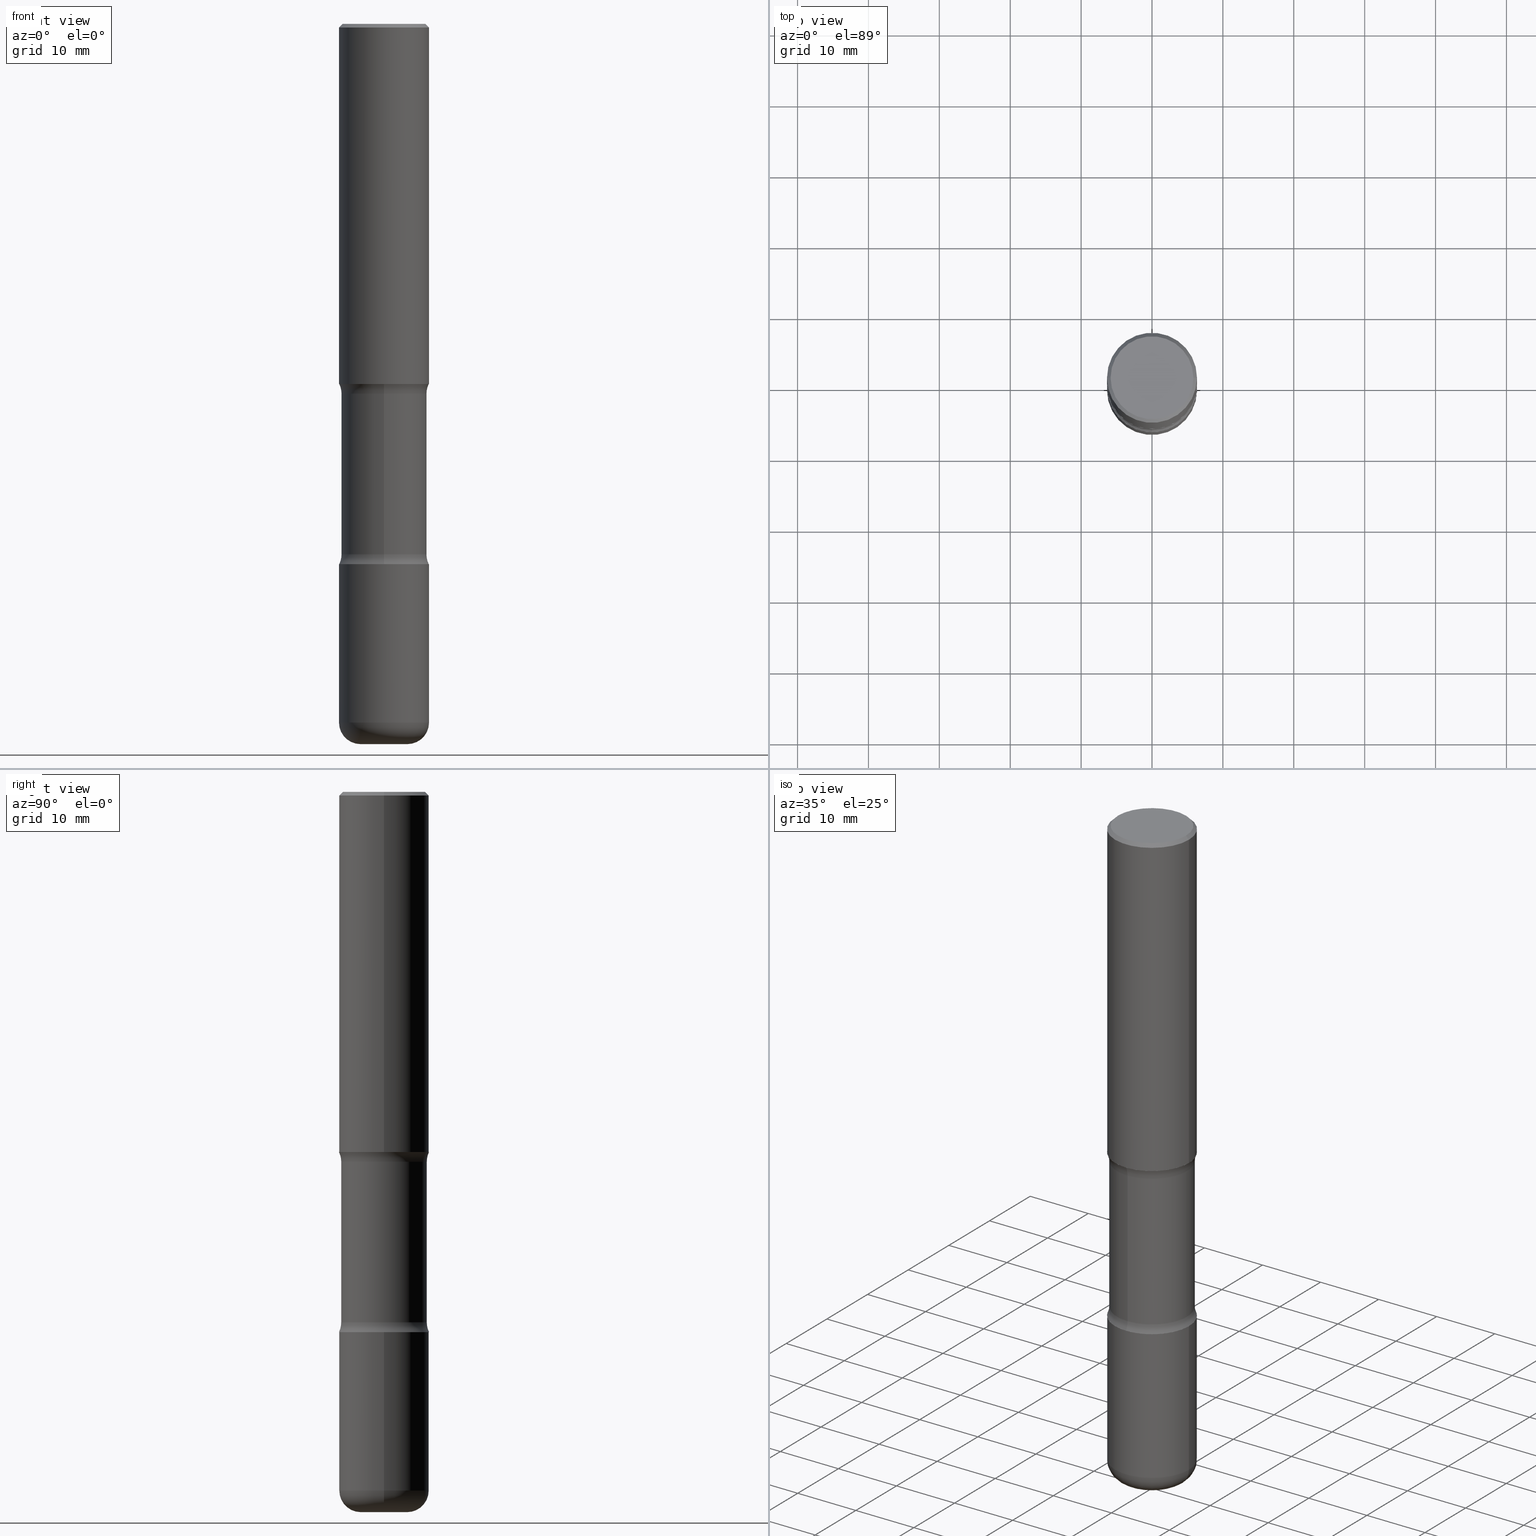
[diagram: canonical four-view strip — front | top / right | iso, engineering-drawing reading convention]
A machine part, canonical four-view strip (front | top / right | iso — engineering-drawing reading convention). The complete STEP part file that produces these views, byte-faithful:
ISO-10303-21;
HEADER;
FILE_DESCRIPTION (( 'STEP AP203' ),
    '1' );
FILE_NAME ('37891.STEP',
    '2024-03-02T01:08:46',
    ( '' ),
    ( '' ),
    'SwSTEP 2.0',
    'SolidWorks 2023',
    '' );
FILE_SCHEMA (( 'CONFIG_CONTROL_DESIGN' ));
ENDSEC;

DATA;
#1 = CARTESIAN_POINT ( 'NONE',  ( -0.2500000000000003331, -1.177059075531115523E-14, -3.880000000000000782 ) ) ;
#2 = CIRCLE ( 'NONE', #268, 0.2500000000000003886 ) ;
#3 = DIRECTION ( 'NONE',  ( 2.530378452311521502E-29, -3.369885892833230986E-15, -1.000000000000000000 ) ) ;
#4 = CARTESIAN_POINT ( 'NONE',  ( 1.745740669421641422E-15, 0.2499999999999897582, -3.000000000000000888 ) ) ;
#5 = DIRECTION ( 'NONE',  ( 2.445468806185136597E-29, -3.491481338843145583E-15, -1.000000000000000000 ) ) ;
#6 = APPROVAL ( #188, 'UNSPECIFIED' ) ;
#7 = AXIS2_PLACEMENT_3D ( 'NONE', #484, #232, #521 ) ;
#8 = CIRCLE ( 'NONE', #402, 0.2499999999999999167 ) ;
#9 = ORIENTED_EDGE ( 'NONE', *, *, #277, .F. ) ;
#10 = EDGE_CURVE ( 'NONE', #529, #126, #212, .T. ) ;
#11 = LINE ( 'NONE', #499, #259 ) ;
#12 = CARTESIAN_POINT ( 'NONE',  ( 4.890937612370273194E-29, -6.982962677686291165E-15, -2.000000000000000000 ) ) ;
#13 = EDGE_CURVE ( 'NONE', #77, #276, #272, .T. ) ;
#14 = ORIENTED_EDGE ( 'NONE', *, *, #403, .T. ) ;
#15 = DIRECTION ( 'NONE',  ( 2.530378452311521502E-29, -3.369885892833230986E-15, -1.000000000000000000 ) ) ;
#16 = ORIENTED_EDGE ( 'NONE', *, *, #391, .T. ) ;
#17 = PERSON_AND_ORGANIZATION ( #172, #49 ) ;
#18 = DIRECTION ( 'NONE',  ( 6.982962677686265922E-15, 1.000000000000000000, -3.369885892833230986E-15 ) ) ;
#19 = EDGE_LOOP ( 'NONE', ( #416, #152, #44, #72 ) ) ;
#20 = CARTESIAN_POINT ( 'NONE',  ( -1.715124499442811104E-15, -0.2500000000000107692, -2.999999999999999556 ) ) ;
#21 = ORIENTED_EDGE ( 'NONE', *, *, #403, .F. ) ;
#22 = CC_DESIGN_PERSON_AND_ORGANIZATION_ASSIGNMENT ( #32, #146, ( #347 ) ) ;
#23 = PERSON_AND_ORGANIZATION_ROLE ( 'design_owner' ) ;
#24 = CARTESIAN_POINT ( 'NONE',  ( 0.2500000000000003331, -1.529268826413297711E-14, -3.880000000000000782 ) ) ;
#25 = CONICAL_SURFACE ( 'NONE', #54, 0.2499999999999999167, 0.7853981633974472798 ) ;
#26 = AXIS2_PLACEMENT_3D ( 'NONE', #138, #108, #93 ) ;
#27 = APPROVAL_PERSON_ORGANIZATION ( #17, #132, #242 ) ;
#28 = VERTEX_POINT ( 'NONE', #130 ) ;
#29 = CARTESIAN_POINT ( 'NONE',  ( 0.000000000000000000, 0.000000000000000000, 0.000000000000000000 ) ) ;
#30 = CARTESIAN_POINT ( 'NONE',  ( -0.2500000000000003331, 1.776356839400252831E-15, -1.229733772563727987E-29 ) ) ;
#31 = DIRECTION ( 'NONE',  ( -6.982962677686265133E-15, -1.000000000000000000, 0.000000000000000000 ) ) ;
#32 = PERSON_AND_ORGANIZATION ( #172, #49 ) ;
#33 = CARTESIAN_POINT ( 'NONE',  ( 7.336406418555409790E-29, -1.047444401652943635E-14, -3.000000000000000444 ) ) ;
#34 = EDGE_CURVE ( 'NONE', #457, #66, #80, .T. ) ;
#35 = ORIENTED_EDGE ( 'NONE', *, *, #149, .T. ) ;
#36 = DIRECTION ( 'NONE',  ( 1.000000000000000000, -6.982962677686270655E-15, 0.000000000000000000 ) ) ;
#37 = AXIS2_PLACEMENT_3D ( 'NONE', #228, #351, #190 ) ;
#38 = CIRCLE ( 'NONE', #184, 0.2500000000000001665 ) ;
#39 = ORIENTED_EDGE ( 'NONE', *, *, #473, .T. ) ;
#40 = CARTESIAN_POINT ( 'NONE',  ( 9.488418967998331206E-29, -1.354694759471140727E-14, -3.880000000000000782 ) ) ;
#41 = ORIENTED_EDGE ( 'NONE', *, *, #355, .T. ) ;
#42 = EDGE_CURVE ( 'NONE', #493, #207, #291, .T. ) ;
#43 = CARTESIAN_POINT ( 'NONE',  ( 4.890937612370273194E-29, -6.982962677686291165E-15, -2.000000000000000000 ) ) ;
#44 = ORIENTED_EDGE ( 'NONE', *, *, #10, .T. ) ;
#45 = ADVANCED_FACE ( 'NONE', ( #299 ), #133, .T. ) ;
#46 = DIRECTION ( 'NONE',  ( 2.530378452311521502E-29, -3.369885892833230986E-15, -1.000000000000000000 ) ) ;
#47 = FACE_OUTER_BOUND ( 'NONE', #283, .T. ) ;
#48 = VECTOR ( 'NONE', #170, 39.37007874015748143 ) ;
#49 = ORGANIZATION ( 'UNSPECIFIED', 'UNSPECIFIED', '' ) ;
#50 = CARTESIAN_POINT ( 'NONE',  ( -1.672246386956739071E-15, -0.2375000000000103417, -2.945513763205740876 ) ) ;
#51 = DIRECTION ( 'NONE',  ( -2.445468806185136877E-29, 3.491481338843145188E-15, 1.000000000000000000 ) ) ;
#52 = ADVANCED_FACE ( 'NONE', ( #475 ), #25, .T. ) ;
#53 = EDGE_CURVE ( 'NONE', #69, #28, #508, .T. ) ;
#54 = AXIS2_PLACEMENT_3D ( 'NONE', #342, #516, #135 ) ;
#55 = CARTESIAN_POINT ( 'NONE',  ( 1.606081415867840476E-15, 0.2299999999999998990, -8.030407079339231961E-16 ) ) ;
#56 = CC_DESIGN_APPROVAL ( #132, ( #348 ) ) ;
#57 = EDGE_CURVE ( 'NONE', #145, #500, #501, .T. ) ;
#58 = CARTESIAN_POINT ( 'NONE',  ( -1.672246386956763723E-15, -0.2375000000000074274, -2.054486236794258236 ) ) ;
#59 = ORIENTED_EDGE ( 'NONE', *, *, #57, .F. ) ;
#60 = DIRECTION ( 'NONE',  ( -0.7071067811865467956, 2.468850131082249172E-15, -0.7071067811865482389 ) ) ;
#61 = ORIENTED_EDGE ( 'NONE', *, *, #473, .F. ) ;
#62 = DATE_AND_TIME ( #157, #124 ) ;
#63 = CLOSED_SHELL ( 'NONE', ( #311, #45, #545, #435, #352, #168 ) ) ;
#64 = AXIS2_PLACEMENT_3D ( 'NONE', #219, #392, #175 ) ;
#65 = DIRECTION ( 'NONE',  ( 1.000000000000000000, -6.982962677686266711E-15, 4.876176775795935793E-29 ) ) ;
#66 = VERTEX_POINT ( 'NONE', #306 ) ;
#67 = DIRECTION ( 'NONE',  ( 6.982962677686265133E-15, 1.000000000000000000, -2.300503573612010239E-15 ) ) ;
#68 = ADVANCED_FACE ( 'NONE', ( #47 ), #225, .T. ) ;
#69 = VERTEX_POINT ( 'NONE', #58 ) ;
#70 = APPLICATION_PROTOCOL_DEFINITION ( 'international standard', 'config_control_design', 1994, #320 ) ;
#71 = FACE_OUTER_BOUND ( 'NONE', #19, .T. ) ;
#72 = ORIENTED_EDGE ( 'NONE', *, *, #391, .F. ) ;
#73 = DIRECTION ( 'NONE',  ( 0.000000000000000000, 0.000000000000000000, 1.000000000000000000 ) ) ;
#74 = CARTESIAN_POINT ( 'NONE',  ( 0.000000000000000000, 0.000000000000000000, 0.000000000000000000 ) ) ;
#75 = AXIS2_PLACEMENT_3D ( 'NONE', #102, #408, #274 ) ;
#76 = CIRCLE ( 'NONE', #202, 0.2375000000000001277 ) ;
#77 = VERTEX_POINT ( 'NONE', #4 ) ;
#78 =( LENGTH_UNIT ( ) NAMED_UNIT ( * ) SI_UNIT ( $, .METRE. ) );
#79 = DIRECTION ( 'NONE',  ( 2.530378452311521502E-29, -3.369885892833230986E-15, -1.000000000000000000 ) ) ;
#80 = LINE ( 'NONE', #254, #48 ) ;
#81 = CARTESIAN_POINT ( 'NONE',  ( 0.2500000000000000555, -1.745740669421567269E-15, 1.219044193948984228E-29 ) ) ;
#82 = ORIENTED_EDGE ( 'NONE', *, *, #97, .F. ) ;
#83 = DIRECTION ( 'NONE',  ( -2.445468806185136597E-29, 3.491481338843145583E-15, 1.000000000000000000 ) ) ;
#84 = CIRCLE ( 'NONE', #401, 0.1250000000000000000 ) ;
#85 = AXIS2_PLACEMENT_3D ( 'NONE', #310, #445, #405 ) ;
#86 = ORIENTED_EDGE ( 'NONE', *, *, #194, .F. ) ;
#87 = DIRECTION ( 'NONE',  ( 1.000000000000000000, -6.982962677686265922E-15, 0.000000000000000000 ) ) ;
#88 = CARTESIAN_POINT ( 'NONE',  ( 7.336406418555409790E-29, -1.047444401652943635E-14, -3.000000000000000444 ) ) ;
#89 = DIRECTION ( 'NONE',  ( -2.445468806185136597E-29, 3.491481338843145583E-15, 1.000000000000000000 ) ) ;
#90 = CARTESIAN_POINT ( 'NONE',  ( 9.781875224740547508E-29, -1.396592535537258391E-14, -4.000000000000000888 ) ) ;
#91 = EDGE_CURVE ( 'NONE', #359, #207, #270, .T. ) ;
#92 = DIRECTION ( 'NONE',  ( -2.445468806185136877E-29, 3.491481338843145188E-15, 1.000000000000000000 ) ) ;
#93 = DIRECTION ( 'NONE',  ( -1.000000000000000000, 6.982962677686265922E-15, -4.876176775795935793E-29 ) ) ;
#94 = AXIS2_PLACEMENT_3D ( 'NONE', #471, #263, #31 ) ;
#95 = CIRCLE ( 'NONE', #134, 0.1250000000000000000 ) ;
#96 = ADVANCED_FACE ( 'NONE', ( #404 ), #144, .F. ) ;
#97 = EDGE_CURVE ( 'NONE', #247, #457, #409, .T. ) ;
#98 = AXIS2_PLACEMENT_3D ( 'NONE', #338, #510, #18 ) ;
#99 = ORIENTED_EDGE ( 'NONE', *, *, #34, .F. ) ;
#100 = TOROIDAL_SURFACE ( 'NONE', #422, 0.3625000000000000999, 0.1250000000000000000 ) ;
#101 = AXIS2_PLACEMENT_3D ( 'NONE', #544, #155, #67 ) ;
#102 = CARTESIAN_POINT ( 'NONE',  ( -2.486930524192108484E-15, -0.3625000000000104250, -2.945513763205740432 ) ) ;
#103 = ORIENTED_EDGE ( 'NONE', *, *, #277, .T. ) ;
#104 = DIRECTION ( 'NONE',  ( 2.438088387897960049E-29, -3.491481338843145188E-15, -1.000000000000000000 ) ) ;
#105 = DIRECTION ( 'NONE',  ( 1.000000000000000000, -6.982962677686267499E-15, 4.876176775795936353E-29 ) ) ;
#106 = EDGE_LOOP ( 'NONE', ( #549, #303, #167, #502 ) ) ;
#107 = APPROVAL_DATE_TIME ( #427, #295 ) ;
#108 = DIRECTION ( 'NONE',  ( 2.438088387897960049E-29, -3.491481338843145188E-15, -1.000000000000000000 ) ) ;
#109 = ORIENTED_EDGE ( 'NONE', *, *, #13, .T. ) ;
#110 = AXIS2_PLACEMENT_3D ( 'NONE', #169, #395, #258 ) ;
#111 = CYLINDRICAL_SURFACE ( 'NONE', #344, 0.2500000000000000555 ) ;
#112 = EDGE_CURVE ( 'NONE', #247, #326, #11, .T. ) ;
#113 = ORIENTED_EDGE ( 'NONE', *, *, #91, .F. ) ;
#114 = DIRECTION ( 'NONE',  ( -2.445468806185136597E-29, 3.491481338843145583E-15, 1.000000000000000000 ) ) ;
#115 = ORIENTED_EDGE ( 'NONE', *, *, #355, .F. ) ;
#116 = APPROVAL_ROLE ( '' ) ;
#117 = PERSON_AND_ORGANIZATION ( #172, #49 ) ;
#118 = CARTESIAN_POINT ( 'NONE',  ( -0.2500000000000000555, 1.776356839400250859E-15, -1.229733772563726866E-29 ) ) ;
#119 = ORIENTED_EDGE ( 'NONE', *, *, #194, .T. ) ;
#120 = EDGE_CURVE ( 'NONE', #500, #359, #325, .T. ) ;
#121 = APPROVAL_ROLE ( '' ) ;
#122 = CYLINDRICAL_SURFACE ( 'NONE', #396, 0.2500000000000003331 ) ;
#123 = AXIS2_PLACEMENT_3D ( 'NONE', #376, #253, #470 ) ;
#124 = LOCAL_TIME ( 20, 8, 46.00000000000000000, #383 ) ;
#125 = SECURITY_CLASSIFICATION ( '', '', #537 ) ;
#126 = VERTEX_POINT ( 'NONE', #189 ) ;
#127 = CARTESIAN_POINT ( 'NONE',  ( 1.658453635950560525E-15, 0.2374999999999897748, -2.945513763205741764 ) ) ;
#128 = ORIENTED_EDGE ( 'NONE', *, *, #309, .T. ) ;
#129 = DIRECTION ( 'NONE',  ( -2.445468806185136597E-29, 3.491481338843145583E-15, 1.000000000000000000 ) ) ;
#130 = CARTESIAN_POINT ( 'NONE',  ( 1.658453635950538436E-15, 0.2374999999999928557, -2.054486236794259568 ) ) ;
#131 = FACE_OUTER_BOUND ( 'NONE', #426, .T. ) ;
#132 = APPROVAL ( #547, 'UNSPECIFIED' ) ;
#133 = TOROIDAL_SURFACE ( 'NONE', #523, 0.1300000000000003375, 0.1199999999999999539 ) ;
#134 = AXIS2_PLACEMENT_3D ( 'NONE', #548, #161, #507 ) ;
#135 = DIRECTION ( 'NONE',  ( -1.000000000000000000, 6.982962677686267499E-15, 0.000000000000000000 ) ) ;
#136 = DIRECTION ( 'NONE',  ( 1.000000000000000000, -6.982962677686265922E-15, 4.876176775795935793E-29 ) ) ;
#137 = LINE ( 'NONE', #304, #346 ) ;
#138 = CARTESIAN_POINT ( 'NONE',  ( 7.336406418555409790E-29, -1.047444401652943635E-14, -3.000000000000000444 ) ) ;
#139 = CARTESIAN_POINT ( 'NONE',  ( 7.198535619023675570E-29, -1.029083161580289368E-14, -2.945513763205741320 ) ) ;
#140 = AXIS2_PLACEMENT_3D ( 'NONE', #198, #250, #243 ) ;
#141 = DIMENSIONAL_EXPONENTS ( 1.000000000000000000, 0.000000000000000000, 0.000000000000000000, 0.000000000000000000, 0.000000000000000000, 0.000000000000000000, 0.000000000000000000 ) ;
#142 = EDGE_LOOP ( 'NONE', ( #245, #431 ) ) ;
#143 = AXIS2_PLACEMENT_3D ( 'NONE', #33, #332, #420 ) ;
#144 = PLANE ( 'NONE',  #248 ) ;
#145 = VERTEX_POINT ( 'NONE', #362 ) ;
#146 = PERSON_AND_ORGANIZATION_ROLE ( 'creator' ) ;
#147 = PLANE ( 'NONE',  #26 ) ;
#148 = ORIENTED_EDGE ( 'NONE', *, *, #42, .T. ) ;
#149 = EDGE_CURVE ( 'NONE', #359, #209, #2, .T. ) ;
#150 = PERSON_AND_ORGANIZATION ( #172, #49 ) ;
#151 = CYLINDRICAL_SURFACE ( 'NONE', #337, 0.2375000000000000999 ) ;
#152 = ORIENTED_EDGE ( 'NONE', *, *, #177, .T. ) ;
#153 = CIRCLE ( 'NONE', #75, 0.1250000000000000278 ) ;
#154 = AXIS2_PLACEMENT_3D ( 'NONE', #55, #104, #278 ) ;
#155 = DIRECTION ( 'NONE',  ( 2.530378452311521502E-29, -3.369885892833230986E-15, -1.000000000000000000 ) ) ;
#156 = ORIENTED_EDGE ( 'NONE', *, *, #415, .T. ) ;
#157 = CALENDAR_DATE ( 2024, 1, 3 ) ;
#158 = CYLINDRICAL_SURFACE ( 'NONE', #410, 0.2500000000000003331 ) ;
#159 = DIRECTION ( 'NONE',  ( 2.530378452311521502E-29, -3.369885892833230986E-15, -1.000000000000000000 ) ) ;
#160 = LENGTH_MEASURE_WITH_UNIT ( LENGTH_MEASURE( 0.02539999999999999897 ), #78 );
#161 = DIRECTION ( 'NONE',  ( -1.000000000000000000, 6.982962677686265922E-15, -4.883557194083112340E-29 ) ) ;
#162 = CARTESIAN_POINT ( 'NONE',  ( 4.806027966243888288E-29, -7.104558123696206156E-15, -2.000000000000000000 ) ) ;
#163 = COORDINATED_UNIVERSAL_TIME_OFFSET ( 5, 0, .BEHIND. ) ;
#164 = CC_DESIGN_APPROVAL ( #6, ( #125 ) ) ;
#165 = CLOSED_SHELL ( 'NONE', ( #316, #201, #231, #503, #96, #256, #533, #68 ) ) ;
#166 = VECTOR ( 'NONE', #92, 39.37007874015748143 ) ;
#167 = ORIENTED_EDGE ( 'NONE', *, *, #91, .T. ) ;
#168 = ADVANCED_FACE ( 'NONE', ( #520 ), #147, .F. ) ;
#169 = CARTESIAN_POINT ( 'NONE',  ( 9.488418967998331206E-29, -1.354694759471140727E-14, -3.880000000000000782 ) ) ;
#170 = DIRECTION ( 'NONE',  ( 0.7071067811865467956, -7.319954787623254468E-15, -0.7071067811865482389 ) ) ;
#171 = DIRECTION ( 'NONE',  ( 6.982962677686265922E-15, 1.000000000000000000, -4.370956789862816416E-15 ) ) ;
#172 = PERSON ( 'UNSPECIFIED', 'UNSPECIFIED', 'UNSPECIFIED', ('UNSPECIFIED'), ('UNSPECIFIED'), ('UNSPECIFIED') ) ;
#173 = MANIFOLD_SOLID_BREP ( 'Body-Move/Copy2[4]', #165 ) ;
#174 = DIRECTION ( 'NONE',  ( 1.000000000000000000, -6.982962677686270655E-15, 4.883557194083114583E-29 ) ) ;
#175 = DIRECTION ( 'NONE',  ( 1.000000000000000000, -6.982962677686267499E-15, 4.876176775795935793E-29 ) ) ;
#176 = CIRCLE ( 'NONE', #440, 0.1300000000000003375 ) ;
#177 = EDGE_CURVE ( 'NONE', #69, #529, #84, .T. ) ;
#178 = AXIS2_PLACEMENT_3D ( 'NONE', #182, #522, #36 ) ;
#179 = CARTESIAN_POINT ( 'NONE',  ( 0.000000000000000000, 0.000000000000000000, 0.000000000000000000 ) ) ;
#180 = FACE_OUTER_BOUND ( 'NONE', #412, .T. ) ;
#181 = DIRECTION ( 'NONE',  ( 2.530378452311521502E-29, -3.369885892833230986E-15, -1.000000000000000000 ) ) ;
#182 = CARTESIAN_POINT ( 'NONE',  ( 7.336406418555409790E-29, -1.047444401652943635E-14, -3.000000000000000444 ) ) ;
#183 = MANIFOLD_SOLID_BREP ( 'Body-Move/Copy2[1]', #63 ) ;
#184 = AXIS2_PLACEMENT_3D ( 'NONE', #557, #129, #87 ) ;
#185 = PRODUCT_DEFINITION_SHAPE ( 'NONE', 'NONE',  #348 ) ;
#186 = DATE_AND_TIME ( #400, #411 ) ;
#187 = ORIENTED_EDGE ( 'NONE', *, *, #218, .T. ) ;
#188 = APPROVAL_STATUS ( 'not_yet_approved' ) ;
#189 = CARTESIAN_POINT ( 'NONE',  ( 1.745740669421617165E-15, 0.2499999999999933109, -2.000000000000000888 ) ) ;
#190 = DIRECTION ( 'NONE',  ( 6.982962677686265133E-15, 1.000000000000000000, -2.300503573612010239E-15 ) ) ;
#191 = CIRCLE ( 'NONE', #140, 0.1199999999999999262 ) ;
#192 = ORIENTED_EDGE ( 'NONE', *, *, #309, .F. ) ;
#193 = VECTOR ( 'NONE', #559, 39.37007874015748143 ) ;
#194 = EDGE_CURVE ( 'NONE', #257, #536, #153, .T. ) ;
#195 = ORIENTED_EDGE ( 'NONE', *, *, #448, .F. ) ;
#196 = CARTESIAN_POINT ( 'NONE',  ( 0.000000000000000000, 0.000000000000000000, 0.000000000000000000 ) ) ;
#197 = ORIENTED_EDGE ( 'NONE', *, *, #329, .F. ) ;
#198 = CARTESIAN_POINT ( 'NONE',  ( -0.1300000000000003375, -1.262324203822327621E-14, -3.880000000000000782 ) ) ;
#199 = VERTEX_POINT ( 'NONE', #406 ) ;
#200 = DATE_AND_TIME ( #208, #386 ) ;
#201 = ADVANCED_FACE ( 'NONE', ( #281 ), #466, .F. ) ;
#202 = AXIS2_PLACEMENT_3D ( 'NONE', #433, #3, #515 ) ;
#203 = LINE ( 'NONE', #30, #467 ) ;
#204 = EDGE_LOOP ( 'NONE', ( #552, #41 ) ) ;
#205 =( NAMED_UNIT ( * ) SI_UNIT ( $, .STERADIAN. ) SOLID_ANGLE_UNIT ( ) );
#206 = DIRECTION ( 'NONE',  ( -2.530378452311521502E-29, 3.369885892833230592E-15, 1.000000000000000000 ) ) ;
#207 = VERTEX_POINT ( 'NONE', #220 ) ;
#208 = CALENDAR_DATE ( 2024, 1, 3 ) ;
#209 = VERTEX_POINT ( 'NONE', #1 ) ;
#210 = APPROVAL_PERSON_ORGANIZATION ( #488, #6, #116 ) ;
#211 = LINE ( 'NONE', #81, #166 ) ;
#212 = CIRCLE ( 'NONE', #446, 0.2500000000000003886 ) ;
#213 = CIRCLE ( 'NONE', #447, 0.2499999999999999167 ) ;
#214 = ORIENTED_EDGE ( 'NONE', *, *, #524, .F. ) ;
#215 = EDGE_CURVE ( 'NONE', #457, #247, #229, .T. ) ;
#216 = CARTESIAN_POINT ( 'NONE',  ( 4.890937612370289799E-31, -6.982962677686315028E-17, -0.02000000000000006981 ) ) ;
#217 = ORIENTED_EDGE ( 'NONE', *, *, #97, .T. ) ;
#218 = EDGE_CURVE ( 'NONE', #69, #536, #137, .T. ) ;
#219 = CARTESIAN_POINT ( 'NONE',  ( 0.000000000000000000, 0.000000000000000000, 0.000000000000000000 ) ) ;
#220 = CARTESIAN_POINT ( 'NONE',  ( 0.2500000000000002776, -1.222018468595100619E-14, -3.000000000000000444 ) ) ;
#221 = CARTESIAN_POINT ( 'NONE',  ( 0.2299999999999998990, -1.681434332853598617E-15, 1.149527484987432660E-29 ) ) ;
#222 = ADVANCED_FACE ( 'NONE', ( #439 ), #111, .T. ) ;
#223 = TOROIDAL_SURFACE ( 'NONE', #98, 0.3625000000000000999, 0.1250000000000000000 ) ;
#224 = TOROIDAL_SURFACE ( 'NONE', #327, 0.3625000000000000999, 0.1250000000000000278 ) ;
#225 = CYLINDRICAL_SURFACE ( 'NONE', #37, 0.2375000000000000999 ) ;
#226 = PERSON_AND_ORGANIZATION_ROLE ( 'classification_officer' ) ;
#227 = CARTESIAN_POINT ( 'NONE',  ( 7.203162026108633562E-29, -1.028420633753849345E-14, -2.945513763205741320 ) ) ;
#228 = CARTESIAN_POINT ( 'NONE',  ( 9.866784870866931853E-29, -1.384432990936266734E-14, -4.000000000000000000 ) ) ;
#229 = CIRCLE ( 'NONE', #541, 0.2299999999999998990 ) ;
#230 = CIRCLE ( 'NONE', #432, 0.2500000000000002776 ) ;
#231 = ADVANCED_FACE ( 'NONE', ( #71 ), #223, .F. ) ;
#232 = DIRECTION ( 'NONE',  ( -6.982962677686266711E-15, -1.000000000000000000, 3.491481338843145583E-15 ) ) ;
#233 = ORIENTED_EDGE ( 'NONE', *, *, #479, .F. ) ;
#234 = DIRECTION ( 'NONE',  ( 6.860497997771529985E-15, 1.000000000000000000, 0.000000000000000000 ) ) ;
#235 = CC_DESIGN_DATE_AND_TIME_ASSIGNMENT ( #62, #331, ( #348 ) ) ;
#236 = AXIS2_PLACEMENT_3D ( 'NONE', #90, #444, #532 ) ;
#237 = ORIENTED_EDGE ( 'NONE', *, *, #479, .T. ) ;
#238 =( GEOMETRIC_REPRESENTATION_CONTEXT ( 3 ) GLOBAL_UNCERTAINTY_ASSIGNED_CONTEXT ( ( #251 ) ) GLOBAL_UNIT_ASSIGNED_CONTEXT ( ( #458, #249, #205 ) ) REPRESENTATION_CONTEXT ( 'NONE', 'WORKASPACE' ) );
#239 = DIRECTION ( 'NONE',  ( 1.000000000000000000, 0.000000000000000000, 0.000000000000000000 ) ) ;
#240 = LOCAL_TIME ( 20, 8, 46.00000000000000000, #275 ) ;
#241 = FACE_OUTER_BOUND ( 'NONE', #450, .T. ) ;
#242 = APPROVAL_ROLE ( '' ) ;
#243 = DIRECTION ( 'NONE',  ( -1.000000000000000000, 7.105427357601011325E-15, 0.000000000000000000 ) ) ;
#244 = DATE_AND_TIME ( #365, #240 ) ;
#245 = ORIENTED_EDGE ( 'NONE', *, *, #273, .F. ) ;
#246 = DIRECTION ( 'NONE',  ( 1.000000000000000000, -6.982962677686269077E-15, 0.000000000000000000 ) ) ;
#247 = VERTEX_POINT ( 'NONE', #296 ) ;
#248 = AXIS2_PLACEMENT_3D ( 'NONE', #12, #397, #322 ) ;
#249 =( NAMED_UNIT ( * ) PLANE_ANGLE_UNIT ( ) SI_UNIT ( $, .RADIAN. ) );
#250 = DIRECTION ( 'NONE',  ( 7.105427357601001859E-15, 1.000000000000000000, -3.491481338843145583E-15 ) ) ;
#251 = UNCERTAINTY_MEASURE_WITH_UNIT (LENGTH_MEASURE( 1.000000000000000082E-05 ), #458, 'distance_accuracy_value', 'NONE');
#252 = PERSON_AND_ORGANIZATION_ROLE ( 'creator' ) ;
#253 = DIRECTION ( 'NONE',  ( 2.530378452311521502E-29, -3.369885892833230986E-15, -1.000000000000000000 ) ) ;
#254 = CARTESIAN_POINT ( 'NONE',  ( 0.2499999999999999167, -1.784954126219745400E-15, -0.02000000000000006981 ) ) ;
#255 = FACE_OUTER_BOUND ( 'NONE', #504, .T. ) ;
#256 = ADVANCED_FACE ( 'NONE', ( #538 ), #285, .F. ) ;
#257 = VERTEX_POINT ( 'NONE', #20 ) ;
#258 = DIRECTION ( 'NONE',  ( 1.000000000000000000, -6.982962677686267499E-15, 0.000000000000000000 ) ) ;
#259 = VECTOR ( 'NONE', #60, 39.37007874015748143 ) ;
#260 = CIRCLE ( 'NONE', #542, 0.2500000000000001665 ) ;
#261 = CARTESIAN_POINT ( 'NONE',  ( 9.488418967998331206E-29, -1.354694759471140727E-14, -3.880000000000000782 ) ) ;
#262 = DIRECTION ( 'NONE',  ( -2.445468806185136597E-29, 3.491481338843145583E-15, 1.000000000000000000 ) ) ;
#263 = DIRECTION ( 'NONE',  ( -1.000000000000000000, 6.982962677686265922E-15, -4.883557194083112340E-29 ) ) ;
#264 = CC_DESIGN_PERSON_AND_ORGANIZATION_ASSIGNMENT ( #321, #498, ( #347 ) ) ;
#265 = DIRECTION ( 'NONE',  ( 1.000000000000000000, -6.982962677686270655E-15, 4.883557194083114583E-29 ) ) ;
#266 = DIRECTION ( 'NONE',  ( 2.530378452311521502E-29, -3.369885892833230592E-15, -1.000000000000000000 ) ) ;
#267 = CARTESIAN_POINT ( 'NONE',  ( -0.2500000000000002776, -1.023433896622016898E-14, -3.000000000000000444 ) ) ;
#268 = AXIS2_PLACEMENT_3D ( 'NONE', #526, #454, #451 ) ;
#269 = CONICAL_SURFACE ( 'NONE', #301, 0.2499999999999999167, 0.7853981633974472798 ) ;
#270 = LINE ( 'NONE', #535, #282 ) ;
#271 = FACE_OUTER_BOUND ( 'NONE', #496, .T. ) ;
#272 = CIRCLE ( 'NONE', #94, 0.1250000000000000278 ) ;
#273 = EDGE_CURVE ( 'NONE', #126, #529, #530, .T. ) ;
#274 = DIRECTION ( 'NONE',  ( 6.860497997771532351E-15, 1.000000000000000000, 0.000000000000000000 ) ) ;
#275 = COORDINATED_UNIVERSAL_TIME_OFFSET ( 5, 0, .BEHIND. ) ;
#276 = VERTEX_POINT ( 'NONE', #127 ) ;
#277 = EDGE_CURVE ( 'NONE', #500, #145, #176, .T. ) ;
#278 = DIRECTION ( 'NONE',  ( -1.000000000000000000, 6.982962677686265922E-15, -4.876176775795935793E-29 ) ) ;
#279 = DIRECTION ( 'NONE',  ( -2.445468806185136597E-29, 3.491481338843145583E-15, 1.000000000000000000 ) ) ;
#280 = ORIENTED_EDGE ( 'NONE', *, *, #329, .T. ) ;
#281 = FACE_OUTER_BOUND ( 'NONE', #317, .T. ) ;
#282 = VECTOR ( 'NONE', #51, 39.37007874015748143 ) ;
#283 = EDGE_LOOP ( 'NONE', ( #461, #452, #14, #385 ) ) ;
#284 = AXIS2_PLACEMENT_3D ( 'NONE', #40, #262, #265 ) ;
#285 = PLANE ( 'NONE',  #421 ) ;
#286 = ORIENTED_EDGE ( 'NONE', *, *, #460, .F. ) ;
#287 = DIRECTION ( 'NONE',  ( 1.000000000000000000, -6.982962677686266711E-15, 4.876176775795935793E-29 ) ) ;
#288 = ORIENTED_EDGE ( 'NONE', *, *, #34, .T. ) ;
#289 = DIRECTION ( 'NONE',  ( -2.445468806185136597E-29, 3.491481338843145583E-15, 1.000000000000000000 ) ) ;
#290 = ORIENTED_EDGE ( 'NONE', *, *, #524, .T. ) ;
#291 = CIRCLE ( 'NONE', #394, 0.2500000000000002776 ) ;
#292 = COORDINATED_UNIVERSAL_TIME_OFFSET ( 5, 0, .BEHIND. ) ;
#293 = CARTESIAN_POINT ( 'NONE',  ( 0.000000000000000000, 0.000000000000000000, 0.000000000000000000 ) ) ;
#294 = ORIENTED_EDGE ( 'NONE', *, *, #57, .T. ) ;
#295 = APPROVAL ( #334, 'UNSPECIFIED' ) ;
#296 = CARTESIAN_POINT ( 'NONE',  ( -0.2299999999999998990, 1.640996229256271928E-15, -1.135408596578605420E-29 ) ) ;
#297 = ORIENTED_EDGE ( 'NONE', *, *, #415, .F. ) ;
#298 = CARTESIAN_POINT ( 'NONE',  ( -0.2500000000000001665, -1.750039312831323809E-15, -2.000000000000000000 ) ) ;
#299 = FACE_OUTER_BOUND ( 'NONE', #382, .T. ) ;
#300 = DIRECTION ( 'NONE',  ( 6.982962677686265922E-15, 1.000000000000000000, -3.369885892833230986E-15 ) ) ;
#301 = AXIS2_PLACEMENT_3D ( 'NONE', #216, #5, #353 ) ;
#302 = EDGE_CURVE ( 'NONE', #145, #209, #191, .T. ) ;
#303 = ORIENTED_EDGE ( 'NONE', *, *, #460, .T. ) ;
#304 = CARTESIAN_POINT ( 'NONE',  ( -1.629368274470640415E-15, -0.2375000000000139222, -3.999999999999999556 ) ) ;
#305 = LINE ( 'NONE', #483, #193 ) ;
#306 = CARTESIAN_POINT ( 'NONE',  ( 0.2499999999999999167, -1.784954126219745400E-15, -0.02000000000000006981 ) ) ;
#307 = CIRCLE ( 'NONE', #143, 0.2500000000000002776 ) ;
#308 = APPLICATION_CONTEXT ( 'configuration controlled 3d designs of mechanical parts and assemblies' ) ;
#309 = EDGE_CURVE ( 'NONE', #276, #536, #551, .T. ) ;
#310 = CARTESIAN_POINT ( 'NONE',  ( -1.957443286563838823E-29, -3.077729762407571596E-14, -4.000000000000000000 ) ) ;
#311 = ADVANCED_FACE ( 'NONE', ( #428 ), #122, .T. ) ;
#312 = ORIENTED_EDGE ( 'NONE', *, *, #443, .T. ) ;
#313 = PLANE ( 'NONE',  #85 ) ;
#314 = CARTESIAN_POINT ( 'NONE',  ( -2.486930524192130572E-15, -0.3625000000000073164, -2.054486236794257792 ) ) ;
#315 = AXIS2_PLACEMENT_3D ( 'NONE', #29, #73, #239 ) ;
#316 = ADVANCED_FACE ( 'NONE', ( #241 ), #151, .T. ) ;
#317 = EDGE_LOOP ( 'NONE', ( #115, #119, #437, #534 ) ) ;
#318 = CARTESIAN_POINT ( 'NONE',  ( 0.000000000000000000, 0.000000000000000000, 0.000000000000000000 ) ) ;
#319 = ORIENTED_EDGE ( 'NONE', *, *, #381, .F. ) ;
#320 = APPLICATION_CONTEXT ( 'configuration controlled 3d designs of mechanical parts and assemblies' ) ;
#321 = PERSON_AND_ORGANIZATION ( #172, #49 ) ;
#322 = DIRECTION ( 'NONE',  ( 6.982962677686265922E-15, 1.000000000000000000, -3.369885892833230592E-15 ) ) ;
#323 = ORIENTED_EDGE ( 'NONE', *, *, #112, .F. ) ;
#324 = DIRECTION ( 'NONE',  ( -2.445468806185136597E-29, 3.491481338843145583E-15, 1.000000000000000000 ) ) ;
#325 = CIRCLE ( 'NONE', #7, 0.1199999999999999262 ) ;
#326 = VERTEX_POINT ( 'NONE', #417 ) ;
#327 = AXIS2_PLACEMENT_3D ( 'NONE', #227, #358, #360 ) ;
#328 = CARTESIAN_POINT ( 'NONE',  ( 4.890937612370273194E-29, -6.982962677686291165E-15, -2.000000000000000000 ) ) ;
#329 = EDGE_CURVE ( 'NONE', #199, #418, #260, .T. ) ;
#330 = ORIENTED_EDGE ( 'NONE', *, *, #448, .T. ) ;
#331 = DATE_TIME_ROLE ( 'creation_date' ) ;
#332 = DIRECTION ( 'NONE',  ( 2.530378452311521502E-29, -3.369885892833230986E-15, -1.000000000000000000 ) ) ;
#333 = ORIENTED_EDGE ( 'NONE', *, *, #302, .F. ) ;
#334 = APPROVAL_STATUS ( 'not_yet_approved' ) ;
#335 = DIRECTION ( 'NONE',  ( -2.445468806185136597E-29, 3.491481338843145583E-15, 1.000000000000000000 ) ) ;
#336 = EDGE_LOOP ( 'NONE', ( #558, #288, #156, #323 ) ) ;
#337 = AXIS2_PLACEMENT_3D ( 'NONE', #462, #79, #372 ) ;
#338 = CARTESIAN_POINT ( 'NONE',  ( 4.976491023364875751E-29, -7.241496556518841686E-15, -2.054486236794258680 ) ) ;
#339 = CARTESIAN_POINT ( 'NONE',  ( 4.890937612370289799E-31, -6.982962677686315028E-17, -0.02000000000000006981 ) ) ;
#340 = DIRECTION ( 'NONE',  ( 1.000000000000000000, -6.982962677686270655E-15, 0.000000000000000000 ) ) ;
#341 = DIRECTION ( 'NONE',  ( 6.982962677686265133E-15, 1.000000000000000000, -2.300503573612010239E-15 ) ) ;
#342 = CARTESIAN_POINT ( 'NONE',  ( 4.890937612370289799E-31, -6.982962677686315028E-17, -0.02000000000000006981 ) ) ;
#343 = DESIGN_CONTEXT ( 'detailed design', #308, 'design' ) ;
#344 = AXIS2_PLACEMENT_3D ( 'NONE', #74, #324, #384 ) ;
#345 = CARTESIAN_POINT ( 'NONE',  ( -1.715124499442836348E-15, -0.2500000000000074385, -1.999999999999999112 ) ) ;
#346 = VECTOR ( 'NONE', #266, 39.37007874015748143 ) ;
#347 = PRODUCT_DEFINITION_FORMATION_WITH_SPECIFIED_SOURCE ( 'ANY', '', #487, .NOT_KNOWN. ) ;
#348 = PRODUCT_DEFINITION ( 'UNKNOWN', '', #347, #343 ) ;
#349 = DIRECTION ( 'NONE',  ( -2.445468806185136597E-29, 3.491481338843145583E-15, 1.000000000000000000 ) ) ;
#350 = FACE_OUTER_BOUND ( 'NONE', #463, .T. ) ;
#351 = DIRECTION ( 'NONE',  ( 2.530378452311521502E-29, -3.369885892833230986E-15, -1.000000000000000000 ) ) ;
#352 = ADVANCED_FACE ( 'NONE', ( #540 ), #158, .T. ) ;
#353 = DIRECTION ( 'NONE',  ( -1.000000000000000000, 6.982962677686267499E-15, 0.000000000000000000 ) ) ;
#354 = DATE_TIME_ROLE ( 'classification_date' ) ;
#355 = EDGE_CURVE ( 'NONE', #257, #77, #307, .T. ) ;
#356 = AXIS2_PLACEMENT_3D ( 'NONE', #318, #279, #105 ) ;
#357 = CIRCLE ( 'NONE', #110, 0.2500000000000003886 ) ;
#358 = DIRECTION ( 'NONE',  ( 2.530378452311521502E-29, -3.369885892833230986E-15, -1.000000000000000000 ) ) ;
#359 = VERTEX_POINT ( 'NONE', #24 ) ;
#360 = DIRECTION ( 'NONE',  ( 6.982962677686265922E-15, 1.000000000000000000, -3.369885892833230986E-15 ) ) ;
#361 = ADVANCED_BREP_SHAPE_REPRESENTATION ( '37891', ( #183, #371, #173, #315 ), #238 ) ;
#362 = CARTESIAN_POINT ( 'NONE',  ( -0.1300000000000003375, -1.240640527709780404E-14, -4.000000000000000888 ) ) ;
#363 = APPROVAL_DATE_TIME ( #244, #6 ) ;
#364 = PLANE ( 'NONE',  #154 ) ;
#365 = CALENDAR_DATE ( 2024, 1, 3 ) ;
#366 = EDGE_LOOP ( 'NONE', ( #539, #233, #16, #474 ) ) ;
#367 = DIRECTION ( 'NONE',  ( 6.982962677686265133E-15, 1.000000000000000000, -3.450755360418014766E-15 ) ) ;
#368 = ORIENTED_EDGE ( 'NONE', *, *, #443, .F. ) ;
#369 = CARTESIAN_POINT ( 'NONE',  ( 9.781875224740547508E-29, -1.396592535537258391E-14, -4.000000000000000888 ) ) ;
#370 = EDGE_LOOP ( 'NONE', ( #35, #509, #214, #113 ) ) ;
#371 = MANIFOLD_SOLID_BREP ( 'Body-Move/Copy2[2]', #485 ) ;
#372 = DIRECTION ( 'NONE',  ( 6.982962677686265133E-15, 1.000000000000000000, -2.300503573612010239E-15 ) ) ;
#373 = ORIENTED_EDGE ( 'NONE', *, *, #120, .F. ) ;
#374 = LOCAL_TIME ( 20, 8, 46.00000000000000000, #292 ) ;
#375 = COORDINATED_UNIVERSAL_TIME_OFFSET ( 5, 0, .BEHIND. ) ;
#376 = CARTESIAN_POINT ( 'NONE',  ( 4.806027966243888288E-29, -7.104558123696206156E-15, -2.000000000000000000 ) ) ;
#377 = EDGE_CURVE ( 'NONE', #209, #493, #203, .T. ) ;
#378 = EDGE_LOOP ( 'NONE', ( #333, #294, #434, #286 ) ) ;
#379 = APPLICATION_PROTOCOL_DEFINITION ( 'international standard', 'config_control_design', 1994, #308 ) ;
#380 = LINE ( 'NONE', #118, #456 ) ;
#381 = EDGE_CURVE ( 'NONE', #418, #326, #380, .T. ) ;
#382 = EDGE_LOOP ( 'NONE', ( #103, #511, #478, #373 ) ) ;
#383 = COORDINATED_UNIVERSAL_TIME_OFFSET ( 5, 0, .BEHIND. ) ;
#384 = DIRECTION ( 'NONE',  ( 1.000000000000000000, -6.982962677686267499E-15, 4.876176775795935793E-29 ) ) ;
#385 = ORIENTED_EDGE ( 'NONE', *, *, #399, .F. ) ;
#386 = LOCAL_TIME ( 20, 8, 46.00000000000000000, #375 ) ;
#387 = DIRECTION ( 'NONE',  ( 2.530378452311521502E-29, -3.369885892833230986E-15, -1.000000000000000000 ) ) ;
#388 = EDGE_LOOP ( 'NONE', ( #290, #148 ) ) ;
#389 = CARTESIAN_POINT ( 'NONE',  ( 7.336406418555409790E-29, -1.047444401652943635E-14, -3.000000000000000444 ) ) ;
#390 = DIRECTION ( 'NONE',  ( -2.445468806185136597E-29, 3.491481338843145583E-15, 1.000000000000000000 ) ) ;
#391 = EDGE_CURVE ( 'NONE', #28, #126, #95, .T. ) ;
#392 = DIRECTION ( 'NONE',  ( -2.445468806185136597E-29, 3.491481338843145583E-15, 1.000000000000000000 ) ) ;
#393 = DIRECTION ( 'NONE',  ( 6.982962677686265922E-15, 1.000000000000000000, -3.369885892833230986E-15 ) ) ;
#394 = AXIS2_PLACEMENT_3D ( 'NONE', #88, #429, #340 ) ;
#395 = DIRECTION ( 'NONE',  ( -2.445468806185136597E-29, 3.491481338843145583E-15, 1.000000000000000000 ) ) ;
#396 = AXIS2_PLACEMENT_3D ( 'NONE', #293, #425, #65 ) ;
#397 = DIRECTION ( 'NONE',  ( 2.530378452311521502E-29, -3.369885892833230592E-15, -1.000000000000000000 ) ) ;
#398 = CYLINDRICAL_SURFACE ( 'NONE', #64, 0.2500000000000000555 ) ;
#399 = EDGE_CURVE ( 'NONE', #536, #276, #517, .T. ) ;
#400 = CALENDAR_DATE ( 2024, 1, 3 ) ;
#401 = AXIS2_PLACEMENT_3D ( 'NONE', #314, #492, #234 ) ;
#402 = AXIS2_PLACEMENT_3D ( 'NONE', #339, #83, #513 ) ;
#403 = EDGE_CURVE ( 'NONE', #28, #276, #305, .T. ) ;
#404 = FACE_OUTER_BOUND ( 'NONE', #142, .T. ) ;
#405 = DIRECTION ( 'NONE',  ( -1.000000000000000000, 6.982962677686265922E-15, -4.876176775795935793E-29 ) ) ;
#406 = CARTESIAN_POINT ( 'NONE',  ( 0.2500000000000001665, -8.728703347107858632E-15, -2.000000000000000000 ) ) ;
#407 = ORIENTED_EDGE ( 'NONE', *, *, #489, .F. ) ;
#408 = DIRECTION ( 'NONE',  ( 1.000000000000000000, -6.860497997771530774E-15, 4.842287994361612002E-29 ) ) ;
#409 = CIRCLE ( 'NONE', #356, 0.2299999999999998990 ) ;
#410 = AXIS2_PLACEMENT_3D ( 'NONE', #196, #114, #287 ) ;
#411 = LOCAL_TIME ( 20, 8, 46.00000000000000000, #163 ) ;
#412 = EDGE_LOOP ( 'NONE', ( #99, #82, #423, #39 ) ) ;
#413 = MECHANICAL_CONTEXT ( 'NONE', #320, 'mechanical' ) ;
#414 = DIRECTION ( 'NONE',  ( 1.000000000000000000, -6.982962677686265922E-15, 0.000000000000000000 ) ) ;
#415 = EDGE_CURVE ( 'NONE', #66, #326, #213, .T. ) ;
#416 = ORIENTED_EDGE ( 'NONE', *, *, #53, .F. ) ;
#417 = CARTESIAN_POINT ( 'NONE',  ( -0.2499999999999999167, 1.675911042644703182E-15, -0.02000000000000006981 ) ) ;
#418 = VERTEX_POINT ( 'NONE', #298 ) ;
#419 = PERSON_AND_ORGANIZATION ( #172, #49 ) ;
#420 = DIRECTION ( 'NONE',  ( 6.982962677686265922E-15, 1.000000000000000000, -4.370956789862816416E-15 ) ) ;
#421 = AXIS2_PLACEMENT_3D ( 'NONE', #550, #206, #459 ) ;
#422 = AXIS2_PLACEMENT_3D ( 'NONE', #472, #46, #300 ) ;
#423 = ORIENTED_EDGE ( 'NONE', *, *, #112, .T. ) ;
#424 = AXIS2_PLACEMENT_3D ( 'NONE', #139, #387, #341 ) ;
#425 = DIRECTION ( 'NONE',  ( -2.445468806185136597E-29, 3.491481338843145583E-15, 1.000000000000000000 ) ) ;
#426 = EDGE_LOOP ( 'NONE', ( #319, #312, #330, #61 ) ) ;
#427 = DATE_AND_TIME ( #469, #374 ) ;
#428 = FACE_OUTER_BOUND ( 'NONE', #370, .T. ) ;
#429 = DIRECTION ( 'NONE',  ( -2.445468806185136597E-29, 3.491481338843145583E-15, 1.000000000000000000 ) ) ;
#430 = CARTESIAN_POINT ( 'NONE',  ( 0.1300000000000003375, -1.487371050347180047E-14, -4.000000000000000888 ) ) ;
#431 = ORIENTED_EDGE ( 'NONE', *, *, #10, .F. ) ;
#432 = AXIS2_PLACEMENT_3D ( 'NONE', #389, #438, #171 ) ;
#433 = CARTESIAN_POINT ( 'NONE',  ( 4.943898765775623630E-29, -7.288170524422749615E-15, -2.054486236794258680 ) ) ;
#434 = ORIENTED_EDGE ( 'NONE', *, *, #120, .T. ) ;
#435 = ADVANCED_FACE ( 'NONE', ( #518 ), #491, .T. ) ;
#436 = PLANE ( 'NONE',  #486 ) ;
#437 = ORIENTED_EDGE ( 'NONE', *, *, #399, .T. ) ;
#438 = DIRECTION ( 'NONE',  ( 2.530378452311521502E-29, -3.369885892833230986E-15, -1.000000000000000000 ) ) ;
#439 = FACE_OUTER_BOUND ( 'NONE', #546, .T. ) ;
#440 = AXIS2_PLACEMENT_3D ( 'NONE', #369, #335, #246 ) ;
#441 = DIRECTION ( 'NONE',  ( -2.438088387897960049E-29, 3.491481338843145188E-15, 1.000000000000000000 ) ) ;
#442 = APPROVAL_PERSON_ORGANIZATION ( #117, #295, #121 ) ;
#443 = EDGE_CURVE ( 'NONE', #418, #199, #38, .T. ) ;
#444 = DIRECTION ( 'NONE',  ( -2.445468806185136597E-29, 3.491481338843145583E-15, 1.000000000000000000 ) ) ;
#445 = DIRECTION ( 'NONE',  ( 2.438088387897960049E-29, -3.491481338843145188E-15, -1.000000000000000000 ) ) ;
#446 = AXIS2_PLACEMENT_3D ( 'NONE', #162, #159, #556 ) ;
#447 = AXIS2_PLACEMENT_3D ( 'NONE', #480, #89, #555 ) ;
#448 = EDGE_CURVE ( 'NONE', #199, #66, #211, .T. ) ;
#449 = CARTESIAN_POINT ( 'NONE',  ( 4.943898765775623630E-29, -7.288170524422749615E-15, -2.054486236794258680 ) ) ;
#450 = EDGE_LOOP ( 'NONE', ( #237, #187, #192, #21 ) ) ;
#451 = DIRECTION ( 'NONE',  ( 1.000000000000000000, -6.982962677686267499E-15, 0.000000000000000000 ) ) ;
#452 = ORIENTED_EDGE ( 'NONE', *, *, #53, .T. ) ;
#453 = CC_DESIGN_APPROVAL ( #295, ( #347 ) ) ;
#454 = DIRECTION ( 'NONE',  ( -2.445468806185136597E-29, 3.491481338843145583E-15, 1.000000000000000000 ) ) ;
#455 = CC_DESIGN_DATE_AND_TIME_ASSIGNMENT ( #186, #354, ( #125 ) ) ;
#456 = VECTOR ( 'NONE', #465, 39.37007874015748143 ) ;
#457 = VERTEX_POINT ( 'NONE', #221 ) ;
#458 =( CONVERSION_BASED_UNIT ( 'INCH', #160 ) LENGTH_UNIT ( ) NAMED_UNIT ( #141 ) );
#459 = DIRECTION ( 'NONE',  ( -6.982962677686265922E-15, -1.000000000000000000, 3.369885892833230592E-15 ) ) ;
#460 = EDGE_CURVE ( 'NONE', #209, #359, #357, .T. ) ;
#461 = ORIENTED_EDGE ( 'NONE', *, *, #218, .F. ) ;
#462 = CARTESIAN_POINT ( 'NONE',  ( 9.866784870866931853E-29, -1.384432990936266734E-14, -4.000000000000000000 ) ) ;
#463 = EDGE_LOOP ( 'NONE', ( #86, #407, #109, #128 ) ) ;
#464 = CC_DESIGN_PERSON_AND_ORGANIZATION_ASSIGNMENT ( #150, #226, ( #125 ) ) ;
#465 = DIRECTION ( 'NONE',  ( -2.445468806185136877E-29, 3.491481338843145188E-15, 1.000000000000000000 ) ) ;
#466 = TOROIDAL_SURFACE ( 'NONE', #476, 0.3625000000000000999, 0.1250000000000000278 ) ;
#467 = VECTOR ( 'NONE', #506, 39.37007874015748143 ) ;
#468 = ORIENTED_EDGE ( 'NONE', *, *, #215, .T. ) ;
#469 = CALENDAR_DATE ( 2024, 1, 3 ) ;
#470 = DIRECTION ( 'NONE',  ( 6.982962677686265133E-15, 1.000000000000000000, -3.278217592397110735E-15 ) ) ;
#471 = CARTESIAN_POINT ( 'NONE',  ( 2.531323970661343863E-15, 0.3624999999999897748, -2.945513763205742652 ) ) ;
#472 = CARTESIAN_POINT ( 'NONE',  ( 4.976491023364875751E-29, -7.241496556518841686E-15, -2.054486236794258680 ) ) ;
#473 = EDGE_CURVE ( 'NONE', #326, #66, #8, .T. ) ;
#474 = ORIENTED_EDGE ( 'NONE', *, *, #273, .T. ) ;
#475 = FACE_OUTER_BOUND ( 'NONE', #336, .T. ) ;
#476 = AXIS2_PLACEMENT_3D ( 'NONE', #495, #15, #393 ) ;
#477 = FACE_OUTER_BOUND ( 'NONE', #366, .T. ) ;
#478 = ORIENTED_EDGE ( 'NONE', *, *, #149, .F. ) ;
#479 = EDGE_CURVE ( 'NONE', #28, #69, #76, .T. ) ;
#480 = CARTESIAN_POINT ( 'NONE',  ( 4.890937612370289799E-31, -6.982962677686315028E-17, -0.02000000000000006981 ) ) ;
#481 = DIRECTION ( 'NONE',  ( 1.000000000000000000, -6.982962677686267499E-15, 4.876176775795936353E-29 ) ) ;
#482 = ADVANCED_FACE ( 'NONE', ( #180 ), #269, .T. ) ;
#483 = CARTESIAN_POINT ( 'NONE',  ( 1.658453635950587543E-15, 0.2374999999999862776, -4.000000000000000888 ) ) ;
#484 = CARTESIAN_POINT ( 'NONE',  ( 0.1300000000000003375, -1.445473274281062700E-14, -3.880000000000000782 ) ) ;
#485 = CLOSED_SHELL ( 'NONE', ( #222, #52, #482, #560, #497, #528 ) ) ;
#486 = AXIS2_PLACEMENT_3D ( 'NONE', #43, #441, #136 ) ;
#487 = PRODUCT ( '37891', '37891', '', ( #413 ) ) ;
#488 = PERSON_AND_ORGANIZATION ( #172, #49 ) ;
#489 = EDGE_CURVE ( 'NONE', #77, #257, #230, .T. ) ;
#490 = AXIS2_PLACEMENT_3D ( 'NONE', #449, #181, #367 ) ;
#491 = TOROIDAL_SURFACE ( 'NONE', #284, 0.1300000000000003375, 0.1199999999999999539 ) ;
#492 = DIRECTION ( 'NONE',  ( 1.000000000000000000, -6.860497997771530774E-15, 4.842287994361612002E-29 ) ) ;
#493 = VERTEX_POINT ( 'NONE', #267 ) ;
#494 = FACE_OUTER_BOUND ( 'NONE', #525, .T. ) ;
#495 = CARTESIAN_POINT ( 'NONE',  ( 7.203162026108633562E-29, -1.028420633753849345E-14, -2.945513763205741320 ) ) ;
#496 = EDGE_LOOP ( 'NONE', ( #217, #468 ) ) ;
#497 = ADVANCED_FACE ( 'NONE', ( #255 ), #436, .F. ) ;
#498 = PERSON_AND_ORGANIZATION_ROLE ( 'design_supplier' ) ;
#499 = CARTESIAN_POINT ( 'NONE',  ( -0.2499999999999999167, 1.675911042644703182E-15, -0.02000000000000006981 ) ) ;
#500 = VERTEX_POINT ( 'NONE', #430 ) ;
#501 = CIRCLE ( 'NONE', #236, 0.1300000000000003375 ) ;
#502 = ORIENTED_EDGE ( 'NONE', *, *, #42, .F. ) ;
#503 = ADVANCED_FACE ( 'NONE', ( #477 ), #100, .F. ) ;
#504 = EDGE_LOOP ( 'NONE', ( #197, #368 ) ) ;
#505 = APPROVAL_DATE_TIME ( #200, #132 ) ;
#506 = DIRECTION ( 'NONE',  ( -2.445468806185136877E-29, 3.491481338843145188E-15, 1.000000000000000000 ) ) ;
#507 = DIRECTION ( 'NONE',  ( -6.982962677686266711E-15, -1.000000000000000000, 0.000000000000000000 ) ) ;
#508 = CIRCLE ( 'NONE', #490, 0.2375000000000001277 ) ;
#509 = ORIENTED_EDGE ( 'NONE', *, *, #377, .T. ) ;
#510 = DIRECTION ( 'NONE',  ( 2.530378452311521502E-29, -3.369885892833230986E-15, -1.000000000000000000 ) ) ;
#511 = ORIENTED_EDGE ( 'NONE', *, *, #302, .T. ) ;
#512 = CC_DESIGN_PERSON_AND_ORGANIZATION_ASSIGNMENT ( #543, #252, ( #348 ) ) ;
#513 = DIRECTION ( 'NONE',  ( 1.000000000000000000, -6.982962677686267499E-15, 0.000000000000000000 ) ) ;
#514 = ORIENTED_EDGE ( 'NONE', *, *, #381, .T. ) ;
#515 = DIRECTION ( 'NONE',  ( 6.982962677686265133E-15, 1.000000000000000000, -3.450755360418014766E-15 ) ) ;
#516 = DIRECTION ( 'NONE',  ( 2.445468806185136597E-29, -3.491481338843145583E-15, -1.000000000000000000 ) ) ;
#517 = CIRCLE ( 'NONE', #424, 0.2375000000000000722 ) ;
#518 = FACE_OUTER_BOUND ( 'NONE', #378, .T. ) ;
#519 = PRODUCT_RELATED_PRODUCT_CATEGORY ( 'detail', '', ( #487 ) ) ;
#520 = FACE_OUTER_BOUND ( 'NONE', #388, .T. ) ;
#521 = DIRECTION ( 'NONE',  ( 1.000000000000000000, -6.982962677686272233E-15, 0.000000000000000000 ) ) ;
#522 = DIRECTION ( 'NONE',  ( -2.445468806185136597E-29, 3.491481338843145583E-15, 1.000000000000000000 ) ) ;
#523 = AXIS2_PLACEMENT_3D ( 'NONE', #261, #390, #174 ) ;
#524 = EDGE_CURVE ( 'NONE', #207, #493, #531, .T. ) ;
#525 = EDGE_LOOP ( 'NONE', ( #9, #59 ) ) ;
#526 = CARTESIAN_POINT ( 'NONE',  ( 9.488418967998331206E-29, -1.354694759471140727E-14, -3.880000000000000782 ) ) ;
#527 = SHAPE_DEFINITION_REPRESENTATION ( #185, #361 ) ;
#528 = ADVANCED_FACE ( 'NONE', ( #131 ), #398, .T. ) ;
#529 = VERTEX_POINT ( 'NONE', #345 ) ;
#530 = CIRCLE ( 'NONE', #123, 0.2500000000000003886 ) ;
#531 = CIRCLE ( 'NONE', #178, 0.2500000000000002776 ) ;
#532 = DIRECTION ( 'NONE',  ( 1.000000000000000000, -6.982962677686269077E-15, 0.000000000000000000 ) ) ;
#533 = ADVANCED_FACE ( 'NONE', ( #350 ), #224, .F. ) ;
#534 = ORIENTED_EDGE ( 'NONE', *, *, #13, .F. ) ;
#535 = CARTESIAN_POINT ( 'NONE',  ( 0.2500000000000003331, -1.745740669421569044E-15, 1.219044193948985630E-29 ) ) ;
#536 = VERTEX_POINT ( 'NONE', #50 ) ;
#537 = SECURITY_CLASSIFICATION_LEVEL ( 'unclassified' ) ;
#538 = FACE_OUTER_BOUND ( 'NONE', #204, .T. ) ;
#539 = ORIENTED_EDGE ( 'NONE', *, *, #177, .F. ) ;
#540 = FACE_OUTER_BOUND ( 'NONE', #106, .T. ) ;
#541 = AXIS2_PLACEMENT_3D ( 'NONE', #179, #349, #481 ) ;
#542 = AXIS2_PLACEMENT_3D ( 'NONE', #328, #289, #414 ) ;
#543 = PERSON_AND_ORGANIZATION ( #172, #49 ) ;
#544 = CARTESIAN_POINT ( 'NONE',  ( 7.198535619023675570E-29, -1.029083161580289368E-14, -2.945513763205741320 ) ) ;
#545 = ADVANCED_FACE ( 'NONE', ( #494 ), #313, .T. ) ;
#546 = EDGE_LOOP ( 'NONE', ( #280, #514, #297, #195 ) ) ;
#547 = APPROVAL_STATUS ( 'not_yet_approved' ) ;
#548 = CARTESIAN_POINT ( 'NONE',  ( 2.531323970661321775E-15, 0.3624999999999928280, -2.054486236794260012 ) ) ;
#549 = ORIENTED_EDGE ( 'NONE', *, *, #377, .F. ) ;
#550 = CARTESIAN_POINT ( 'NONE',  ( 7.336406418555409790E-29, -1.047444401652943635E-14, -3.000000000000000444 ) ) ;
#551 = CIRCLE ( 'NONE', #101, 0.2375000000000000722 ) ;
#552 = ORIENTED_EDGE ( 'NONE', *, *, #489, .T. ) ;
#553 = CC_DESIGN_PERSON_AND_ORGANIZATION_ASSIGNMENT ( #419, #23, ( #487 ) ) ;
#554 = CC_DESIGN_SECURITY_CLASSIFICATION ( #125, ( #347 ) ) ;
#555 = DIRECTION ( 'NONE',  ( 1.000000000000000000, -6.982962677686267499E-15, 0.000000000000000000 ) ) ;
#556 = DIRECTION ( 'NONE',  ( 6.982962677686265133E-15, 1.000000000000000000, -3.278217592397110735E-15 ) ) ;
#557 = CARTESIAN_POINT ( 'NONE',  ( 4.890937612370273194E-29, -6.982962677686291165E-15, -2.000000000000000000 ) ) ;
#558 = ORIENTED_EDGE ( 'NONE', *, *, #215, .F. ) ;
#559 = DIRECTION ( 'NONE',  ( 2.530378452311521502E-29, -3.369885892833230592E-15, -1.000000000000000000 ) ) ;
#560 = ADVANCED_FACE ( 'NONE', ( #271 ), #364, .F. ) ;
ENDSEC;
END-ISO-10303-21;
